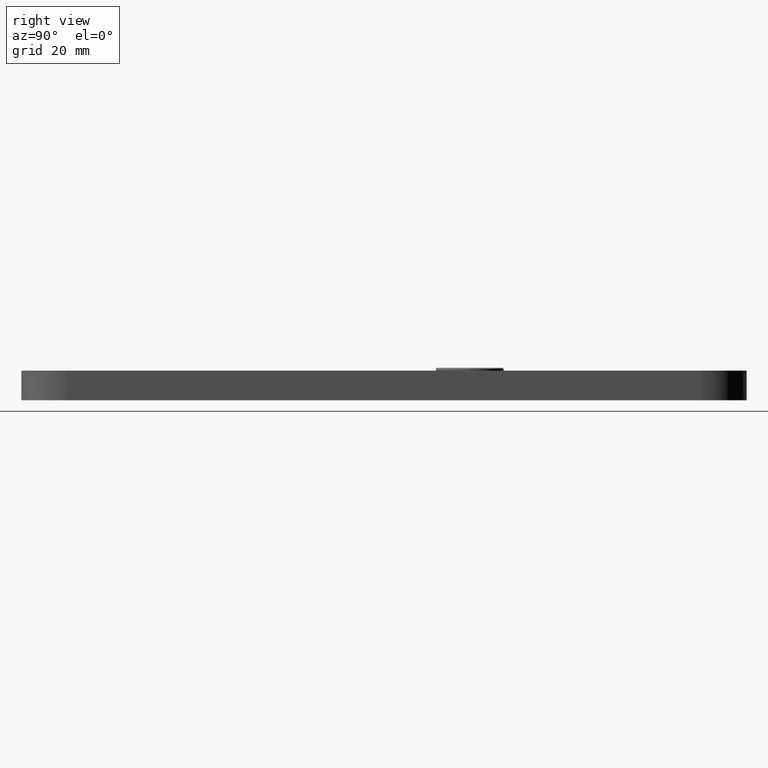
[diagram: clean part render]
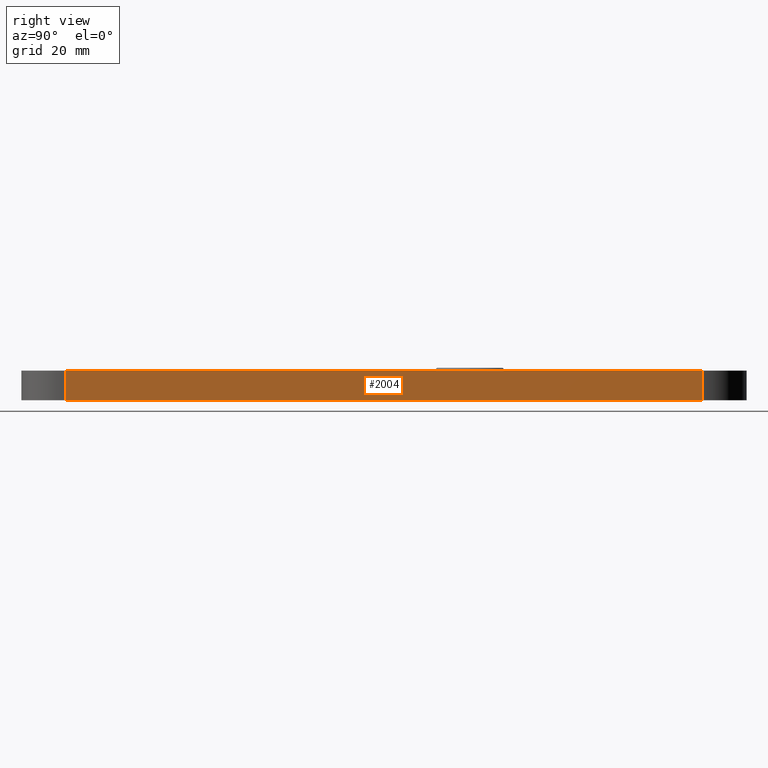
[diagram: same view with one face highlighted and labeled with its STEP entity id]
A machine part, right view. The second image highlights one B-rep face of the part: STEP entity #2004.
In plain terms, the highlighted planar face has unit normal (-1, 0, 0).
Its self-contained STEP definition (entity closure, byte-faithful):
#29 = DIRECTION ( 'NONE',  ( 0.000000000000000000, 0.000000000000000000, 1.000000000000000000 ) ) ;
#325 = CARTESIAN_POINT ( 'NONE',  ( 15.00000000000002487, 122.5000000000000000, 0.000000000000000000 ) ) ;
#443 = LINE ( 'NONE', #5662, #9070 ) ;
#1017 = DIRECTION ( 'NONE',  ( -1.000000000000000000, 0.000000000000000000, 0.000000000000000000 ) ) ;
#1054 = CARTESIAN_POINT ( 'NONE',  ( 15.00000000000002487, 122.5000000000000000, 10.00000000000000000 ) ) ;
#1086 = CARTESIAN_POINT ( 'NONE',  ( 15.00000000000002487, 107.5000000000000000, 10.00000000000000000 ) ) ;
#1507 = EDGE_CURVE ( 'NONE', #7419, #6803, #6134, .T. ) ;
#2004 = ADVANCED_FACE ( 'NONE', ( #2642 ), #8947, .F. ) ;
#2518 = DIRECTION ( 'NONE',  ( -0.000000000000000000, -0.000000000000000000, 1.000000000000000000 ) ) ;
#2642 = FACE_OUTER_BOUND ( 'NONE', #5288, .T. ) ;
#2677 = ORIENTED_EDGE ( 'NONE', *, *, #8496, .T. ) ;
#2769 = CARTESIAN_POINT ( 'NONE',  ( 15.00000000000002487, 107.5000000000000000, 0.000000000000000000 ) ) ;
#2786 = ORIENTED_EDGE ( 'NONE', *, *, #7278, .T. ) ;
#3731 = AXIS2_PLACEMENT_3D ( 'NONE', #1054, #1017, #29 ) ;
#3831 = EDGE_CURVE ( 'NONE', #3843, #6803, #8310, .T. ) ;
#3843 = VERTEX_POINT ( 'NONE', #2769 ) ;
#4358 = CARTESIAN_POINT ( 'NONE',  ( 15.00000000000002487, 107.5000000000000000, 10.00000000000000000 ) ) ;
#4593 = ORIENTED_EDGE ( 'NONE', *, *, #1507, .F. ) ;
#4700 = VECTOR ( 'NONE', #2518, 1000.000000000000000 ) ;
#4763 = DIRECTION ( 'NONE',  ( -0.000000000000000000, 1.000000000000000000, -0.000000000000000000 ) ) ;
#5288 = EDGE_LOOP ( 'NONE', ( #4593, #2677, #2786, #6463 ) ) ;
#5662 = CARTESIAN_POINT ( 'NONE',  ( 15.00000000000002487, -107.4999999999999858, 10.00000000000000000 ) ) ;
#5733 = VERTEX_POINT ( 'NONE', #8100 ) ;
#6134 = LINE ( 'NONE', #7275, #8352 ) ;
#6463 = ORIENTED_EDGE ( 'NONE', *, *, #3831, .T. ) ;
#6803 = VERTEX_POINT ( 'NONE', #1086 ) ;
#7275 = CARTESIAN_POINT ( 'NONE',  ( 15.00000000000002487, 122.5000000000000000, 10.00000000000000000 ) ) ;
#7278 = EDGE_CURVE ( 'NONE', #5733, #3843, #7579, .T. ) ;
#7419 = VERTEX_POINT ( 'NONE', #10478 ) ;
#7579 = LINE ( 'NONE', #325, #9220 ) ;
#8100 = CARTESIAN_POINT ( 'NONE',  ( 15.00000000000002487, -107.4999999999999858, 0.000000000000000000 ) ) ;
#8310 = LINE ( 'NONE', #4358, #4700 ) ;
#8352 = VECTOR ( 'NONE', #10919, 1000.000000000000000 ) ;
#8496 = EDGE_CURVE ( 'NONE', #7419, #5733, #443, .T. ) ;
#8947 = PLANE ( 'NONE',  #3731 ) ;
#9070 = VECTOR ( 'NONE', #9145, 1000.000000000000000 ) ;
#9145 = DIRECTION ( 'NONE',  ( 0.000000000000000000, 0.000000000000000000, -1.000000000000000000 ) ) ;
#9220 = VECTOR ( 'NONE', #4763, 1000.000000000000000 ) ;
#10478 = CARTESIAN_POINT ( 'NONE',  ( 15.00000000000002487, -107.4999999999999858, 10.00000000000000000 ) ) ;
#10919 = DIRECTION ( 'NONE',  ( -0.000000000000000000, 1.000000000000000000, -0.000000000000000000 ) ) ;